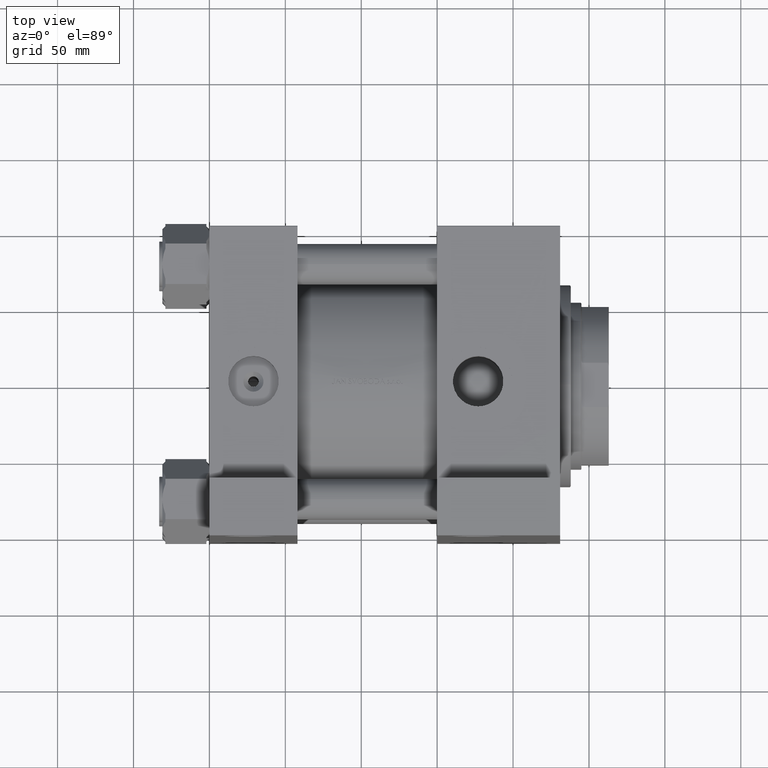
[diagram: clean part render]
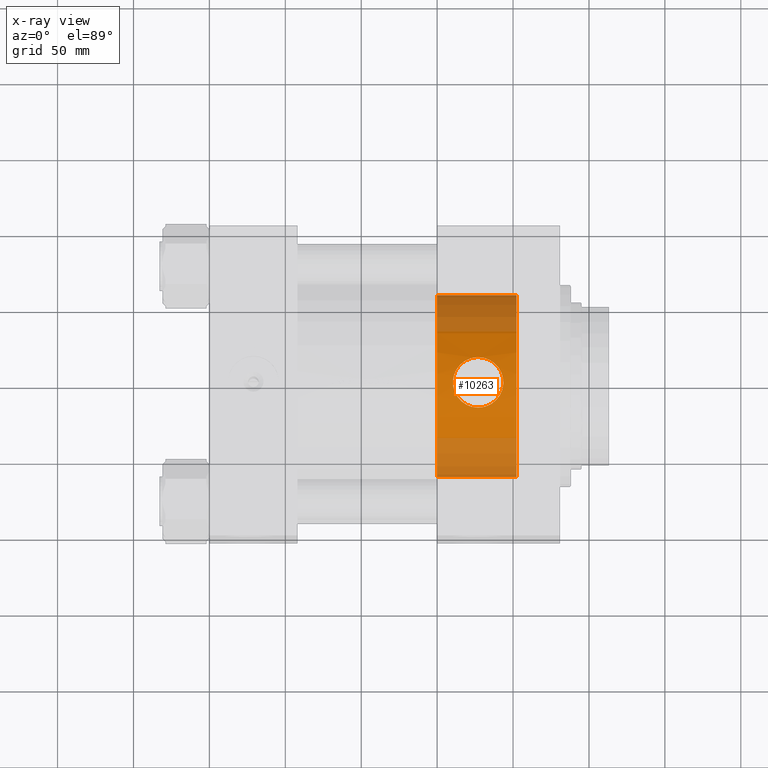
[diagram: x-ray — body ghosted, one internal face saturated and labeled with its STEP entity id]
A machine part, top view, then the same camera in x-ray: the body is ghosted and one INTERNAL B-rep face — a face not visible from any outside direction — is saturated and labeled: STEP entity #10263.
In plain terms, the highlighted cylindrical surface (partial cylindrical patch) has radius 60 mm, axis along (1, 0, 0).
Its self-contained STEP definition (entity closure, byte-faithful):
#158 = CARTESIAN_POINT ( 'NONE',  ( 171.6296863653282117, -57.46373195457211125, 15.76577819134937464 ) ) ;
#242 = EDGE_CURVE ( 'NONE', #37095, #16129, #34839, .T. ) ;
#1283 = B_SPLINE_CURVE_WITH_KNOTS ( 'NONE', 3,
 ( #13794, #28628, #43459, #10141, #21319, #24960, #25212, #3067, #39820, #28873, #10387, #40068, #21560, #36409, #14287, #17917, #43953, #10625, #25450, #30056, #33717, #44428, #40787, #44188, #36896, #14996, #3316, #6973, #15230, #44879, #7456, #47827, #15458, #33479, #29352, #11101, #41010, #10864, #41249, #29818, #22045, #40547, #45124, #7682, #18631, #158, #4020, #37356, #26398, #36655, #22270, #25937 ),
 .UNSPECIFIED., .F., .F.,
 ( 4, 2, 2, 2, 2, 2, 2, 2, 2, 2, 2, 2, 2, 2, 2, 2, 2, 2, 2, 2, 2, 2, 2, 2, 2, 4 ),
 ( 0.000000000000000000, 0.003264205545450322120, 0.004896308318175485348, 0.006528411090900647709, 0.009792616636350972431, 0.01142471940907613566, 0.01305682218180129715, 0.01632102772725156983, 0.01795313049997670704, 0.01958523327270184078, 0.02121733604542697799, 0.02284943881815211519, 0.02611364436360239655, 0.02774574713632754763, 0.02937784990905269178, 0.03264205545450296619, 0.03427415822722810340, 0.03590626099995324755, 0.03753836377267839169, 0.03917046654540353584, 0.04243467209085386577, 0.04406677486357903767, 0.04569887763630420263, 0.04896308318175446317, 0.05059518595447954487, 0.05222728872720463350 ),
 .UNSPECIFIED. ) ;
#2758 = CARTESIAN_POINT ( 'NONE',  ( 202.2999999999999829, 7.347880794884118356E-15, 58.50000000000000000 ) ) ;
#2786 = FACE_OUTER_BOUND ( 'NONE', #45057, .T. ) ;
#2832 = CARTESIAN_POINT ( 'NONE',  ( 192.7524706999078319, -59.88009064042407914, -5.327910073613206343 ) ) ;
#3067 = CARTESIAN_POINT ( 'NONE',  ( 169.6072136705720936, -58.48035259172526423, -14.92511180091094225 ) ) ;
#3316 = CARTESIAN_POINT ( 'NONE',  ( 160.4090419202799751, -59.94501421967468957, 1.126173591730266876 ) ) ;
#3318 = CARTESIAN_POINT ( 'NONE',  ( 179.1906582937077701, -58.09230196217320952, -16.51110509188129072 ) ) ;
#3556 = CARTESIAN_POINT ( 'NONE',  ( 191.9112165617617052, -59.34176819529854185, 7.421437013041654041 ) ) ;
#4020 = CARTESIAN_POINT ( 'NONE',  ( 172.6652876516757544, -57.36660139847637652, 16.08190802447674628 ) ) ;
#4923 = CARTESIAN_POINT ( 'NONE',  ( 150.0000000000000000, 0.000000000000000000, -1.500000000000001332 ) ) ;
#6973 = CARTESIAN_POINT ( 'NONE',  ( 160.5200999593499205, -59.88690944615215983, 2.222847635785677678 ) ) ;
#6975 = CARTESIAN_POINT ( 'NONE',  ( 193.0736224607833833, -59.72234280574532050, 4.363214410836049773 ) ) ;
#7226 = CARTESIAN_POINT ( 'NONE',  ( 185.3249057720333894, -57.85688018114765185, 14.39505639043579066 ) ) ;
#7456 = CARTESIAN_POINT ( 'NONE',  ( 161.2434646153409119, -59.61072889180775292, 5.398712980507998083 ) ) ;
#7458 = CARTESIAN_POINT ( 'NONE',  ( 190.2000059850567766, -59.38005981405632383, -10.11328390555306100 ) ) ;
#7682 = CARTESIAN_POINT ( 'NONE',  ( 169.6339283512643874, -57.71336482913687149, 14.90851061623755669 ) ) ;
#7686 = CARTESIAN_POINT ( 'NONE',  ( 192.7556226395484771, -59.61039163407447461, 5.402079408010092898 ) ) ;
#8775 = DIRECTION ( 'NONE',  ( 1.000000000000000000, 0.000000000000000000, 0.000000000000000000 ) ) ;
#8819 = DIRECTION ( 'NONE',  ( 1.000000000000000000, -0.000000000000000000, -0.000000000000000000 ) ) ;
#10141 = CARTESIAN_POINT ( 'NONE',  ( 173.2118298509128351, -58.17359640492175288, -16.19165587489327507 ) ) ;
#10263 = ADVANCED_FACE ( 'NONE', ( #44147, #2786 ), #10818, .F. ) ;
#10387 = CARTESIAN_POINT ( 'NONE',  ( 166.8591764228088721, -58.85342784384202730, -13.17898106890109311 ) ) ;
#10625 = CARTESIAN_POINT ( 'NONE',  ( 162.0793233792516048, -59.71694032976614608, -7.341191124274391022 ) ) ;
#10627 = CARTESIAN_POINT ( 'NONE',  ( 187.1473263995190450, -58.85443005449678111, -13.17389810596665178 ) ) ;
#10818 = CYLINDRICAL_SURFACE ( 'NONE', #32722, 60.00000000000000000 ) ;
#10864 = CARTESIAN_POINT ( 'NONE',  ( 164.5115795498367106, -58.68931903914725012, 10.97979776588757161 ) ) ;
#11101 = CARTESIAN_POINT ( 'NONE',  ( 163.5028218641982107, -58.94469661481643641, 9.712901489066142702 ) ) ;
#11104 = CARTESIAN_POINT ( 'NONE',  ( 193.5895447292427605, -59.94415944832367416, 1.144698158226111095 ) ) ;
#11337 = CARTESIAN_POINT ( 'NONE',  ( 183.8730077121798843, -57.64626130208444721, 15.14197614821895677 ) ) ;
#11933 = LINE ( 'NONE', #19942, #45268 ) ;
#12189 = VERTEX_POINT ( 'NONE', #16515 ) ;
#13794 = CARTESIAN_POINT ( 'NONE',  ( 177.0000000000000000, -58.06363405781625175, -16.61999999999999389 ) ) ;
#14035 = CARTESIAN_POINT ( 'NONE',  ( 187.9863847040165012, -58.98731155004229976, -12.48275512457567871 ) ) ;
#14287 = CARTESIAN_POINT ( 'NONE',  ( 163.7835983895481888, -59.38226295073511096, -10.13656115897167709 ) ) ;
#14289 = CARTESIAN_POINT ( 'NONE',  ( 182.3797713018963691, -58.28719177506860660, -15.73483997546362723 ) ) ;
#14524 = CARTESIAN_POINT ( 'NONE',  ( 177.0000000000000000, -58.06363405781625175, -16.61999999999999389 ) ) ;
#14762 = CARTESIAN_POINT ( 'NONE',  ( 193.4784451728960448, -59.88626661489585956, 2.232526120978492568 ) ) ;
#14996 = CARTESIAN_POINT ( 'NONE',  ( 160.3811466885320840, -59.96644947781103951, 0.5790051670678084683 ) ) ;
#15230 = CARTESIAN_POINT ( 'NONE',  ( 160.6023177188558009, -59.85072843750211291, 2.763360932147042703 ) ) ;
#15458 = CARTESIAN_POINT ( 'NONE',  ( 162.1101926400418449, -59.33768856715430928, 7.403473260075473128 ) ) ;
#16129 = VERTEX_POINT ( 'NONE', #38538 ) ;
#16515 = CARTESIAN_POINT ( 'NONE',  ( 150.0000000000000000, 7.347880794884118356E-15, 58.50000000000000000 ) ) ;
#16543 = DIRECTION ( 'NONE',  ( 1.000000000000000000, -0.000000000000000000, -0.000000000000000000 ) ) ;
#17679 = CARTESIAN_POINT ( 'NONE',  ( 192.5688382515302521, -59.84479498393582020, -5.842190104091642411 ) ) ;
#17917 = CARTESIAN_POINT ( 'NONE',  ( 162.8719429718119045, -59.55963664098495514, -8.770523959424828320 ) ) ;
#17922 = CARTESIAN_POINT ( 'NONE',  ( 177.0000000000000000, -57.19847550416005788, 16.62000000000002586 ) ) ;
#18170 = CARTESIAN_POINT ( 'NONE',  ( 184.3634957518103761, -57.71300995496648767, 14.90974965953931530 ) ) ;
#18304 = EDGE_CURVE ( 'NONE', #12189, #39365, #11933, .T. ) ;
#18363 = DIRECTION ( 'NONE',  ( 0.000000000000000000, 0.000000000000000000, -1.000000000000000000 ) ) ;
#18631 = CARTESIAN_POINT ( 'NONE',  ( 170.1275590366766153, -57.64618175719704851, 15.14225421903977953 ) ) ;
#18633 = CARTESIAN_POINT ( 'NONE',  ( 186.7062047187974372, -58.78811285864595959, -13.50223850825398308 ) ) ;
#19942 = CARTESIAN_POINT ( 'NONE',  ( -54.20562748477142634, 7.347880794884118356E-15, 58.50000000000000000 ) ) ;
#19989 = CARTESIAN_POINT ( 'NONE',  ( -54.20562748477142634, 0.000000000000000000, -61.50000000000000000 ) ) ;
#20437 = EDGE_CURVE ( 'NONE', #41579, #29720, #1283, .T. ) ;
#20958 = ORIENTED_EDGE ( 'NONE', *, *, #22784, .T. ) ;
#21319 = CARTESIAN_POINT ( 'NONE',  ( 172.6833587022498762, -58.20707144315225179, -16.05897699960737413 ) ) ;
#21560 = CARTESIAN_POINT ( 'NONE',  ( 165.6158471134810100, -59.05375551256741318, -12.12096103602703323 ) ) ;
#21562 = CARTESIAN_POINT ( 'NONE',  ( 193.6185035085851212, -59.96604005522009828, 0.5914985597047203170 ) ) ;
#21799 = CARTESIAN_POINT ( 'NONE',  ( 193.3965093232506831, -59.85024272056089956, 2.769932628104029071 ) ) ;
#22045 = CARTESIAN_POINT ( 'NONE',  ( 166.8620373552769536, -58.17115720511876731, 13.21397818665004387 ) ) ;
#22047 = CARTESIAN_POINT ( 'NONE',  ( 181.3338412034567568, -57.36635484637340454, 16.08272669565340607 ) ) ;
#22270 = CARTESIAN_POINT ( 'NONE',  ( 176.4558604878467634, -57.19847550416007920, 16.62000000000002942 ) ) ;
#22272 = CARTESIAN_POINT ( 'NONE',  ( 189.5124317980650801, -59.25225739829172511, -10.95252116449093727 ) ) ;
#22510 = EDGE_CURVE ( 'NONE', #37095, #12189, #30142, .T. ) ;
#22784 = EDGE_CURVE ( 'NONE', #39365, #16129, #47256, .T. ) ;
#23276 = CARTESIAN_POINT ( 'NONE',  ( 150.0000000000000000, 0.000000000000000000, -61.50000000000000000 ) ) ;
#23827 = B_SPLINE_CURVE_WITH_KNOTS ( 'NONE', 3,
 ( #17922, #25695, #43955, #22047, #40070, #11337, #18170, #7226, #32512, #48060, #33248, #29821, #32762, #36898, #25940, #25215, #3556, #7686, #6975, #21799, #14762, #11104, #21562, #47585, #26163, #41013, #29590, #2832, #17679, #25453, #44430, #40789, #7458, #22272, #37125, #47339, #14035, #10627, #18633, #28876, #43706, #36413, #14289, #33014, #36658, #3318, #47829, #14524 ),
 .UNSPECIFIED., .F., .F.,
 ( 4, 2, 2, 2, 2, 2, 2, 2, 2, 2, 2, 2, 2, 2, 2, 2, 2, 2, 2, 2, 2, 2, 2, 4 ),
 ( 0.05222728872720463350, 0.05549043949984364815, 0.05875359027248266280, 0.06038516565880217013, 0.06201674104512167746, 0.06527989181776061578, 0.06691146720408013004, 0.06854304259039963043, 0.07180619336303861733, 0.07506934413567761810, 0.07670091952199711849, 0.07833249490831663275, 0.08159564568095564741, 0.08322722106727514779, 0.08485879645359464818, 0.08812194722623366283, 0.08975352261255319097, 0.09138509799887273299, 0.09301667338519226114, 0.09464824877151178928, 0.09791139954415084556, 0.09954297493047037371, 0.1011745503167899157, 0.1044377010894289026 ),
 .UNSPECIFIED. ) ;
#24451 = ORIENTED_EDGE ( 'NONE', *, *, #22510, .T. ) ;
#24960 = CARTESIAN_POINT ( 'NONE',  ( 171.6358647540479012, -58.28590769998095311, -15.74008219262195851 ) ) ;
#25212 = CARTESIAN_POINT ( 'NONE',  ( 171.1165214875406377, -58.33138314834808824, -15.55332901950562530 ) ) ;
#25215 = CARTESIAN_POINT ( 'NONE',  ( 191.3982328422449939, -59.18943143445842026, 8.370944108253322469 ) ) ;
#25450 = CARTESIAN_POINT ( 'NONE',  ( 161.8479883443149276, -59.76303637924500833, -6.850907538879989822 ) ) ;
#25453 = CARTESIAN_POINT ( 'NONE',  ( 191.9462766152921063, -59.72268976942503826, -7.349507071757113152 ) ) ;
#25695 = CARTESIAN_POINT ( 'NONE',  ( 178.0879273653470705, -57.19847550416005788, 16.62000000000002942 ) ) ;
#25937 = CARTESIAN_POINT ( 'NONE',  ( 177.0000000000000000, -57.19847550416005788, 16.62000000000002586 ) ) ;
#25940 = CARTESIAN_POINT ( 'NONE',  ( 190.4987149930429950, -58.94510513544972952, 9.710738751369458299 ) ) ;
#26163 = CARTESIAN_POINT ( 'NONE',  ( 193.5183635978441430, -60.00619677587427248, -2.135021881651389286 ) ) ;
#26398 = CARTESIAN_POINT ( 'NONE',  ( 174.8195094690296401, -57.24094885083048467, 16.48546561057752413 ) ) ;
#28628 = CARTESIAN_POINT ( 'NONE',  ( 175.8958881072899203, -58.06363405781625886, -16.61999999999999389 ) ) ;
#28873 = CARTESIAN_POINT ( 'NONE',  ( 167.2997366183794838, -58.78724741055416558, -13.50645268591693338 ) ) ;
#28876 = CARTESIAN_POINT ( 'NONE',  ( 185.3493964863240251, -58.59753532573138557, -14.41172430426329676 ) ) ;
#29352 = CARTESIAN_POINT ( 'NONE',  ( 162.9024886092395548, -59.10774083752950503, 8.818982115485255235 ) ) ;
#29590 = CARTESIAN_POINT ( 'NONE',  ( 193.0702778129531794, -59.93812764194021270, -4.274708167637728984 ) ) ;
#29720 = VERTEX_POINT ( 'NONE', #48081 ) ;
#29818 = CARTESIAN_POINT ( 'NONE',  ( 166.0301819050528138, -58.34129256722032864, 12.53244756169928209 ) ) ;
#29821 = CARTESIAN_POINT ( 'NONE',  ( 189.1212185456124928, -58.60169683749661829, 11.38388353200787861 ) ) ;
#30056 = CARTESIAN_POINT ( 'NONE',  ( 161.4336754893889747, -59.84430683502777271, -5.848754786332752253 ) ) ;
#30142 = CIRCLE ( 'NONE', #34852, 60.00000000000000000 ) ;
#30950 = VECTOR ( 'NONE', #8819, 1000.000000000000000 ) ;
#31664 = EDGE_LOOP ( 'NONE', ( #41091, #38569 ) ) ;
#32467 = CARTESIAN_POINT ( 'NONE',  ( -54.20562748477142634, 0.000000000000000000, -1.500000000000001332 ) ) ;
#32511 = AXIS2_PLACEMENT_3D ( 'NONE', #41125, #8775, #34794 ) ;
#32512 = CARTESIAN_POINT ( 'NONE',  ( 185.7933814508582770, -57.93369342208278283, 14.11357921485654288 ) ) ;
#32722 = AXIS2_PLACEMENT_3D ( 'NONE', #32467, #40509, #18363 ) ;
#32762 = CARTESIAN_POINT ( 'NONE',  ( 189.4889246561866969, -58.68943708910161661, 10.97926710823836061 ) ) ;
#33014 = CARTESIAN_POINT ( 'NONE',  ( 181.3273244684166343, -58.20777084954500680, -16.05619479388558091 ) ) ;
#33248 = CARTESIAN_POINT ( 'NONE',  ( 187.9729144731589656, -58.34197306638122171, 12.52952198481705892 ) ) ;
#33479 = CARTESIAN_POINT ( 'NONE',  ( 162.6238340571794083, -59.18671926554880969, 8.357250284262185858 ) ) ;
#33717 = CARTESIAN_POINT ( 'NONE',  ( 161.2506961005909432, -59.87948416967562792, -5.336886532355499035 ) ) ;
#34621 = DIRECTION ( 'NONE',  ( 0.000000000000000000, 0.000000000000000000, 1.000000000000000000 ) ) ;
#34794 = DIRECTION ( 'NONE',  ( 0.000000000000000000, 0.000000000000000000, -1.000000000000000000 ) ) ;
#34839 = LINE ( 'NONE', #19989, #30950 ) ;
#34852 = AXIS2_PLACEMENT_3D ( 'NONE', #4923, #42396, #34621 ) ;
#36409 = CARTESIAN_POINT ( 'NONE',  ( 164.4704427716681892, -59.25258177723910791, -10.97285419496950176 ) ) ;
#36413 = CARTESIAN_POINT ( 'NONE',  ( 182.8931075905879595, -58.33227717796953726, -15.54960860140082879 ) ) ;
#36655 = CARTESIAN_POINT ( 'NONE',  ( 175.9109413978986822, -57.20694100992080422, 16.59334404857486334 ) ) ;
#36658 = CARTESIAN_POINT ( 'NONE',  ( 180.7959534890177622, -58.17404044184631573, -16.18990212718866673 ) ) ;
#36896 = CARTESIAN_POINT ( 'NONE',  ( 160.3778103901193504, -60.00826960129557364, -1.056286921006527546 ) ) ;
#36898 = CARTESIAN_POINT ( 'NONE',  ( 190.1770285810063683, -58.86101617015120269, 10.14314857809420900 ) ) ;
#37095 = VERTEX_POINT ( 'NONE', #23276 ) ;
#37125 = CARTESIAN_POINT ( 'NONE',  ( 189.1497104772898581, -59.18665602850091290, -11.35345047445998823 ) ) ;
#37356 = CARTESIAN_POINT ( 'NONE',  ( 174.2718213021293536, -57.26667397273760685, 16.40364944776304057 ) ) ;
#38538 = CARTESIAN_POINT ( 'NONE',  ( 202.2999999999999829, 0.000000000000000000, -61.50000000000000000 ) ) ;
#38569 = ORIENTED_EDGE ( 'NONE', *, *, #44731, .F. ) ;
#39365 = VERTEX_POINT ( 'NONE', #2758 ) ;
#39820 = CARTESIAN_POINT ( 'NONE',  ( 168.6534746776704594, -58.59719440342059471, -14.41318182645986923 ) ) ;
#40068 = CARTESIAN_POINT ( 'NONE',  ( 166.0169869499909510, -58.98675026402764132, -12.48580270473227749 ) ) ;
#40070 = CARTESIAN_POINT ( 'NONE',  ( 182.3725390241329478, -57.46398087431503399, 15.76493993562378471 ) ) ;
#40509 = DIRECTION ( 'NONE',  ( 1.000000000000000000, -0.000000000000000000, -0.000000000000000000 ) ) ;
#40547 = CARTESIAN_POINT ( 'NONE',  ( 168.2065932694689820, -57.93370750691462945, 14.11351035700257128 ) ) ;
#40787 = CARTESIAN_POINT ( 'NONE',  ( 160.8001650463215242, -59.96007367285384504, -3.753735042389831023 ) ) ;
#40789 = CARTESIAN_POINT ( 'NONE',  ( 190.5261465121774904, -59.44251578647696022, -9.673005907764375522 ) ) ;
#41010 = CARTESIAN_POINT ( 'NONE',  ( 163.8245005513533670, -58.86062722877150577, 10.14508839776955895 ) ) ;
#41013 = CARTESIAN_POINT ( 'NONE',  ( 193.2027328203078866, -59.96053405698106076, -3.740777024916908999 ) ) ;
#41091 = ORIENTED_EDGE ( 'NONE', *, *, #20437, .F. ) ;
#41125 = CARTESIAN_POINT ( 'NONE',  ( 202.2999999999999829, 0.000000000000000000, -1.500000000000001332 ) ) ;
#41249 = CARTESIAN_POINT ( 'NONE',  ( 164.8791178450057657, -58.60161085659412805, 11.38430074776161405 ) ) ;
#41579 = VERTEX_POINT ( 'NONE', #46944 ) ;
#42396 = DIRECTION ( 'NONE',  ( -1.000000000000000000, 0.000000000000000000, 0.000000000000000000 ) ) ;
#43459 = CARTESIAN_POINT ( 'NONE',  ( 174.8111880374354712, -58.09230418335129542, -16.51107853503636491 ) ) ;
#43706 = CARTESIAN_POINT ( 'NONE',  ( 184.3962041276141122, -58.48080394585469577, -14.92310770002951692 ) ) ;
#43953 = CARTESIAN_POINT ( 'NONE',  ( 162.5907204334687322, -59.61535505829780135, -8.300140981791585659 ) ) ;
#43955 = CARTESIAN_POINT ( 'NONE',  ( 179.1747542538101925, -57.23244466383508922, 16.51383424524411581 ) ) ;
#44147 = FACE_BOUND ( 'NONE', #31664, .T. ) ;
#44188 = CARTESIAN_POINT ( 'NONE',  ( 160.4818296170461451, -60.00624996287145763, -2.139524334812914486 ) ) ;
#44428 = CARTESIAN_POINT ( 'NONE',  ( 160.9341817589134394, -59.93734073538853124, -4.290969053669184241 ) ) ;
#44430 = CARTESIAN_POINT ( 'NONE',  ( 191.4363905774028467, -59.61965064666819814, -8.307355664639510806 ) ) ;
#44731 = EDGE_CURVE ( 'NONE', #29720, #41579, #23827, .T. ) ;
#44879 = CARTESIAN_POINT ( 'NONE',  ( 160.9259030527558139, -59.72248884626477405, 4.362430362682894192 ) ) ;
#45057 = EDGE_LOOP ( 'NONE', ( #24451, #46956, #20958, #46418 ) ) ;
#45124 = CARTESIAN_POINT ( 'NONE',  ( 168.6710266110170835, -57.85751968760114039, 14.39273784289797398 ) ) ;
#45268 = VECTOR ( 'NONE', #16543, 1000.000000000000000 ) ;
#46418 = ORIENTED_EDGE ( 'NONE', *, *, #242, .F. ) ;
#46944 = CARTESIAN_POINT ( 'NONE',  ( 177.0000000000000000, -58.06363405781625175, -16.61999999999999389 ) ) ;
#46956 = ORIENTED_EDGE ( 'NONE', *, *, #18304, .T. ) ;
#47256 = CIRCLE ( 'NONE', #32511, 60.00000000000000000 ) ;
#47339 = CARTESIAN_POINT ( 'NONE',  ( 188.3866864606595755, -59.05418500185751185, -12.11856731650307673 ) ) ;
#47585 = CARTESIAN_POINT ( 'NONE',  ( 193.6228209450341637, -60.00833789129452356, -1.052017810343758519 ) ) ;
#47827 = CARTESIAN_POINT ( 'NONE',  ( 161.8741273531241518, -59.41003161333851068, 6.908683229384211977 ) ) ;
#47829 = CARTESIAN_POINT ( 'NONE',  ( 178.1037551176268892, -58.06363405781628018, -16.62000000000000099 ) ) ;
#48060 = CARTESIAN_POINT ( 'NONE',  ( 187.1413266553554422, -58.17177056856532857, 13.21162352047215904 ) ) ;
#48081 = CARTESIAN_POINT ( 'NONE',  ( 177.0000000000000000, -57.19847550416005788, 16.62000000000002586 ) ) ;